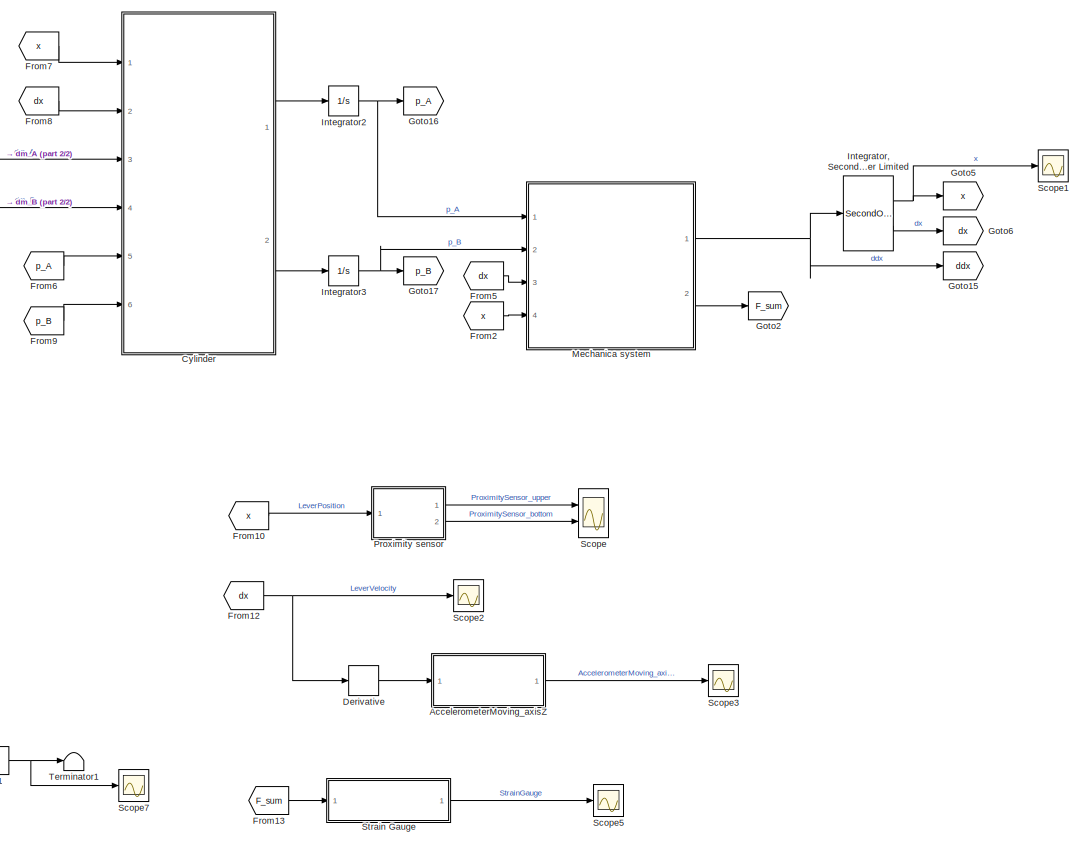
[diagram: root canvas - part 1/2, right side, full height]
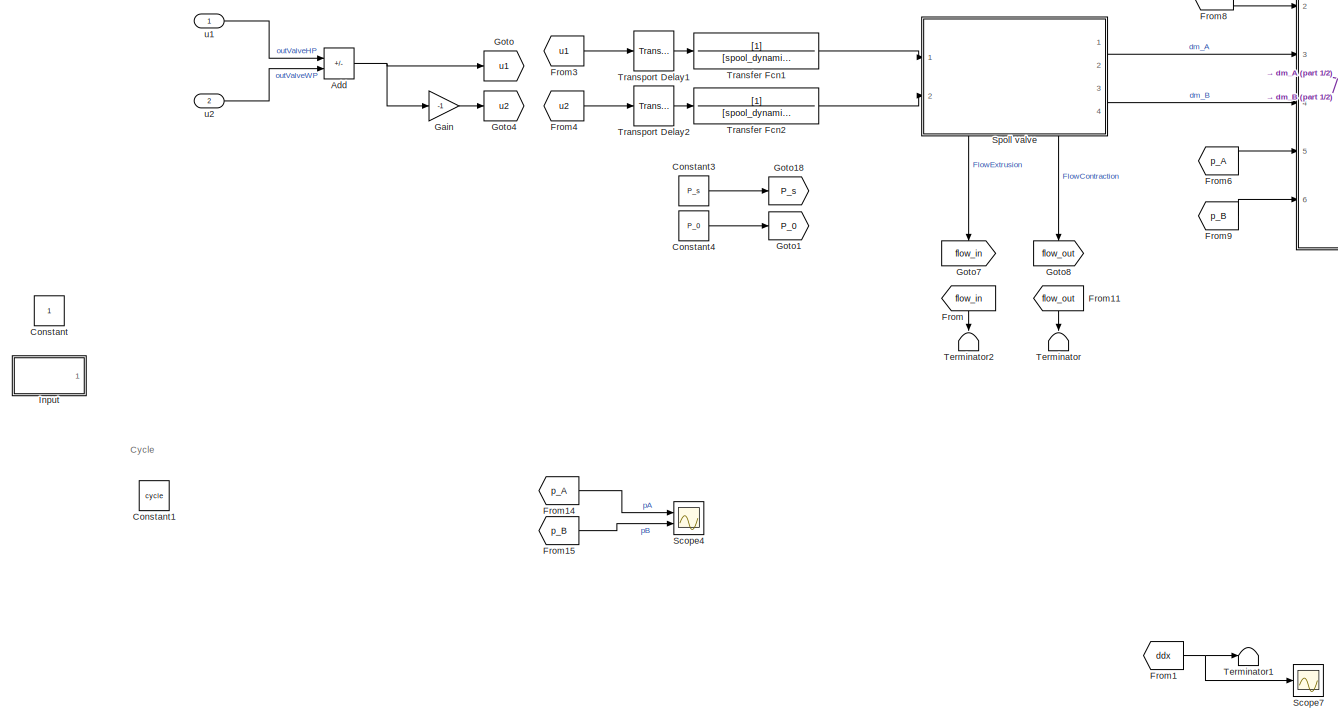
[diagram: root canvas - part 2/2, left side, full height]
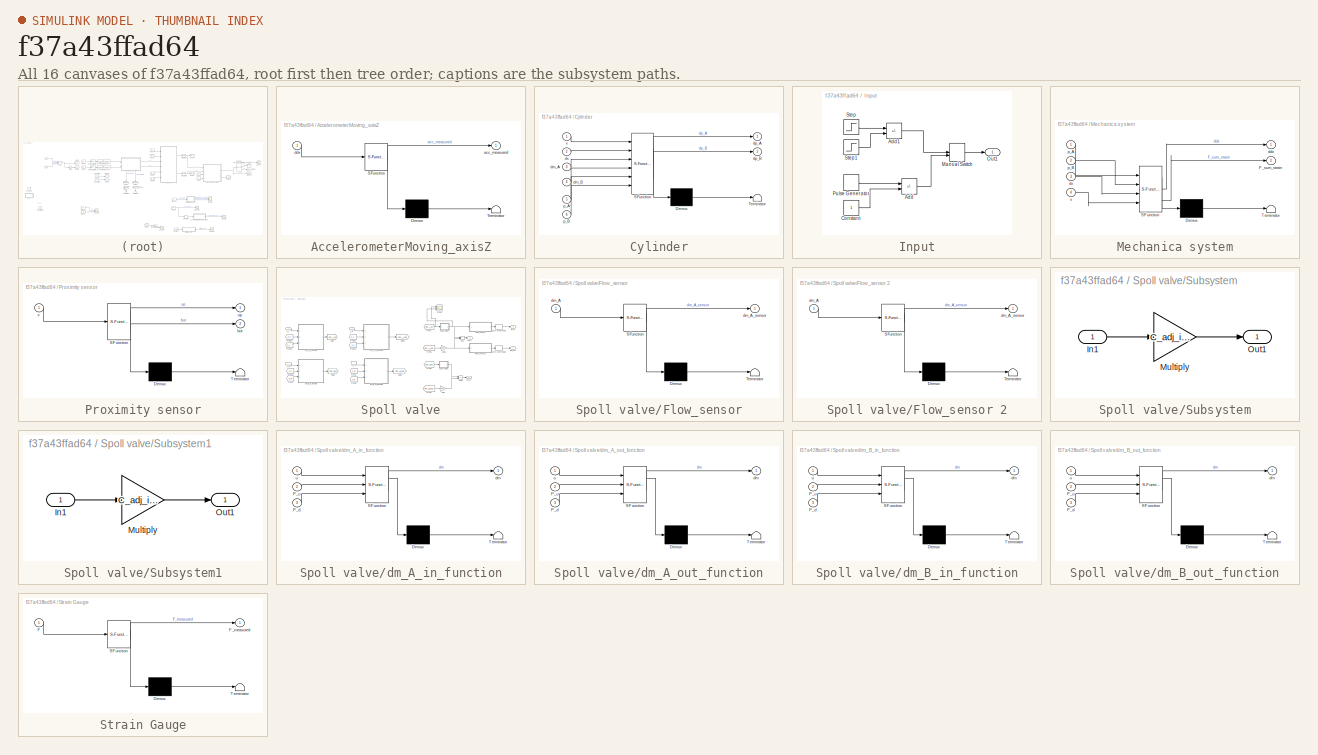
[diagram: thumbnail index - all 16 canvases of the model, root first then tree order]
MODEL slx_f37a43ffad64
KIND model
CONFIG AbsTol = auto
CONFIG EnableMultiTasking = off
CONFIG FixedStep = Ts
CONFIG MaxStep = auto
CONFIG MinStep = auto
CONFIG RelTol = 1e-3
CONFIG SampleTimeConstraint = Unconstrained
CONFIG SolverName = FixedStepAuto
CONFIG StartTime = 0.0
CONFIG StopTime = 10.0
BLOCK [SubSystem] AccelerometerMoving_axisZ
  ErrorFcn = Stateflow.Translate.translate
  PermitHierarchicalResolution = ExplicitOnly
  Ports = [1, 1]
  RequestExecContextInheritance = off
  SFBlockType = MATLAB Function
  TreatAsAtomicUnit = on
BLOCK [Demux] AccelerometerMoving_axisZ/ Demux 
  Outputs = 1
  Ports = [1, 1]
BLOCK [S-Function] AccelerometerMoving_axisZ/ SFunction 
  EnableBusSupport = on
  FunctionName = sf_sfun
  Parameters = acc_C,acc_enable,acc_noise_var
  PortCounts = [1 2]
  Ports = [1, 2]
  SFcnIsStateOwnerBlock = off
  SFunctionDeploymentMode = off
  Tag = Stateflow S-Function 1
BLOCK [Terminator] AccelerometerMoving_axisZ/ Terminator 
BLOCK [Outport] AccelerometerMoving_axisZ/acc_measured
BLOCK [Inport] AccelerometerMoving_axisZ/ddx
BLOCK [Sum] Add
  IconShape = rectangular
  Inputs = -+
  Ports = [2, 1]
BLOCK [Constant] Constant
  Commented = on
BLOCK [Constant] Constant1
  Commented = on
  OutDataTypeStr = double
  Value = cycle
  VectorParams1D = off
BLOCK [Constant] Constant3
  Value = P_s
BLOCK [Constant] Constant4
  Value = P_0
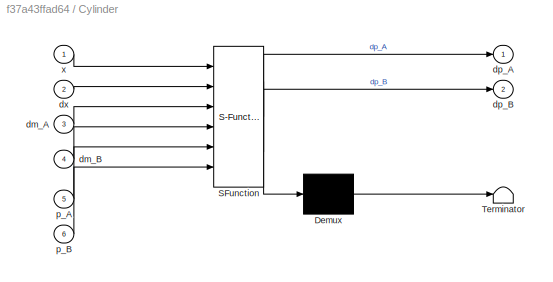
BLOCK [SubSystem] Cylinder
  ErrorFcn = Stateflow.Translate.translate
  PermitHierarchicalResolution = ExplicitOnly
  Ports = [6, 2]
  RequestExecContextInheritance = off
  SFBlockType = MATLAB Function
  TreatAsAtomicUnit = on
BLOCK [Demux] Cylinder/ Demux 
  Outputs = 1
  Ports = [1, 1]
BLOCK [S-Function] Cylinder/ SFunction 
  EnableBusSupport = on
  FunctionName = sf_sfun
  Parameters = L,R,S_A,S_B,T,V_0A,V_0B,gamma
  PortCounts = [6 3]
  Ports = [6, 3]
  SFcnIsStateOwnerBlock = off
  SFunctionDeploymentMode = off
  Tag = Stateflow S-Function 16
BLOCK [Terminator] Cylinder/ Terminator 
BLOCK [Inport] Cylinder/dm_A
  Port = 3
BLOCK [Inport] Cylinder/dm_B
  Port = 4
BLOCK [Outport] Cylinder/dp_A
BLOCK [Outport] Cylinder/dp_B
  Port = 2
BLOCK [Inport] Cylinder/dx
  Port = 2
BLOCK [Inport] Cylinder/p_A
  Port = 5
BLOCK [Inport] Cylinder/p_B
  Port = 6
BLOCK [Inport] Cylinder/x
BLOCK [Derivative] Derivative
BLOCK [From] From
  GotoTag = flow_in
  NameLocation = left
  TagVisibility = global
BLOCK [From] From1
  GotoTag = ddx
  TagVisibility = global
BLOCK [From] From10
  GotoTag = x
  TagVisibility = global
BLOCK [From] From11
  GotoTag = flow_out
  NameLocation = left
  TagVisibility = global
BLOCK [From] From12
  GotoTag = dx
  TagVisibility = global
BLOCK [From] From13
  GotoTag = F_sum
  TagVisibility = global
BLOCK [From] From14
  GotoTag = p_A
  TagVisibility = global
BLOCK [From] From15
  GotoTag = p_B
  TagVisibility = global
BLOCK [From] From2
  GotoTag = x
  TagVisibility = global
BLOCK [From] From3
  GotoTag = u1
BLOCK [From] From4
  GotoTag = u2
BLOCK [From] From5
  GotoTag = dx
  TagVisibility = global
BLOCK [From] From6
  GotoTag = p_A
  TagVisibility = global
BLOCK [From] From7
  GotoTag = x
  TagVisibility = global
BLOCK [From] From8
  GotoTag = dx
  TagVisibility = global
BLOCK [From] From9
  GotoTag = p_B
  TagVisibility = global
BLOCK [Gain] Gain
  Gain = -1
BLOCK [Goto] Goto
  GotoTag = u1
BLOCK [Goto] Goto1
  GotoTag = P_0
  TagVisibility = global
BLOCK [Goto] Goto15
  GotoTag = ddx
  TagVisibility = global
BLOCK [Goto] Goto16
  GotoTag = p_A
  TagVisibility = global
BLOCK [Goto] Goto17
  GotoTag = p_B
  TagVisibility = global
BLOCK [Goto] Goto18
  GotoTag = P_s
  TagVisibility = global
BLOCK [Goto] Goto2
  GotoTag = F_sum
  TagVisibility = global
BLOCK [Goto] Goto4
  GotoTag = u2
BLOCK [Goto] Goto5
  GotoTag = x
  TagVisibility = global
BLOCK [Goto] Goto6
  GotoTag = dx
  TagVisibility = global
BLOCK [Goto] Goto7
  GotoTag = flow_in
  NameLocation = left
  TagVisibility = global
BLOCK [Goto] Goto8
  GotoTag = flow_out
  NameLocation = left
  TagVisibility = global
BLOCK [SubSystem] Input
  Commented = on
  Ports = [0, 1]
  RequestExecContextInheritance = off
BLOCK [Sum] Input/Add
  IconShape = rectangular
  Inputs = +-
  Ports = [2, 1]
BLOCK [Sum] Input/Add1
  IconShape = rectangular
  Inputs = +-
  Ports = [2, 1]
BLOCK [Constant] Input/Constant
BLOCK [ManualSwitch] Input/Manual Switch
BLOCK [Outport] Input/Out1
BLOCK [DiscretePulseGenerator] Input/Pulse Generator
  Amplitude = 2
  Period = 10
  Ports = [0, 1]
  PulseType = Time based
  PulseWidth = 50
BLOCK [Step] Input/Step
  Before = -1
  SampleTime = 0
BLOCK [Step] Input/Step1
  After = 2
  SampleTime = 0
  Time = 6
BLOCK [SecondOrderIntegrator] Integrator, Second-Order Limited
  ICX = x0
  LowerLimitX = gn
  Ports = [1, 2]
  UpperLimitX = gp
BLOCK [Integrator] Integrator2
  InitialCondition = p_A0
  Ports = [1, 1]
BLOCK [Integrator] Integrator3
  InitialCondition = p_B0
  Ports = [1, 1]
BLOCK [SubSystem] Mechanica system
  ErrorFcn = Stateflow.Translate.translate
  PermitHierarchicalResolution = ExplicitOnly
  Ports = [4, 2]
  RequestExecContextInheritance = off
  SFBlockType = MATLAB Function
  TreatAsAtomicUnit = on
BLOCK [Demux] Mechanica system/ Demux 
  Outputs = 1
  Ports = [1, 1]
BLOCK [S-Function] Mechanica system/ SFunction 
  EnableBusSupport = on
  FunctionName = sf_sfun
  Parameters = B_hs,F_c,F_df,F_sf,K_hs,LargeDamper_bottom,LargeDamper_upper,M,M_L,P_0,S_0,S_A,S_B,SmallDamper_bottom,SmallDamper_upper,b_large_bot,b_large_up,b_small_bot,b_small_up,bot_damp_start,g,gn,gp,k_small_bot,k_small_up,up_damp_start
  PortCounts = [4 3]
  Ports = [4, 3]
  SFcnIsStateOwnerBlock = off
  SFunctionDeploymentMode = off
  Tag = Stateflow S-Function 15
BLOCK [Terminator] Mechanica system/ Terminator 
BLOCK [Outport] Mechanica system/F_sum_strain
  Port = 2
BLOCK [Outport] Mechanica system/ddx
BLOCK [Inport] Mechanica system/dx
  Port = 3
BLOCK [Inport] Mechanica system/p_A
BLOCK [Inport] Mechanica system/p_B
  Port = 2
BLOCK [Inport] Mechanica system/x
  Port = 4
BLOCK [SubSystem] Proximity sensor
  ErrorFcn = Stateflow.Translate.translate
  PermitHierarchicalResolution = ExplicitOnly
  Ports = [1, 2]
  RequestExecContextInheritance = off
  SFBlockType = MATLAB Function
  TreatAsAtomicUnit = on
BLOCK [Demux] Proximity sensor/ Demux 
  Outputs = 1
  Ports = [1, 1]
BLOCK [S-Function] Proximity sensor/ SFunction 
  EnableBusSupport = on
  FunctionName = sf_sfun
  Parameters = prox_bot_band,prox_up_band
  PortCounts = [1 3]
  Ports = [1, 3]
  SFcnIsStateOwnerBlock = off
  SFunctionDeploymentMode = off
  Tag = Stateflow S-Function 2
BLOCK [Terminator] Proximity sensor/ Terminator 
BLOCK [Outport] Proximity sensor/bot
  Port = 2
BLOCK [Outport] Proximity sensor/up
BLOCK [Inport] Proximity sensor/x
BLOCK [Scope] Scope
  Floating = off
  NumInputPorts = 2
  Ports = [2]
  ScopeSpecificationString = Simulink.scopes.TimeScopeBlockCfg('CurrentConfiguration', extmgr.ConfigurationSet(extmgr.Configuration('Core','General UI',true),extmgr.Configuration('Core','Source UI',true),extmgr.Configuration('Sources','WiredSimulink',true,'DataLoggingVariableName','ScopeData1'),extmgr.Configuration('Visuals','Time Domain',true,'SerializedDisplays',{struct('MinYLimReal','-0.125','MaxYLimReal','1.125','YLabelRe...<+2045ch>
BLOCK [Scope] Scope1
  Floating = off
  NumInputPorts = 1
  Ports = [1]
  ScopeSpecificationString = Simulink.scopes.TimeScopeBlockCfg('CurrentConfiguration', extmgr.ConfigurationSet(extmgr.Configuration('Core','General UI',true),extmgr.Configuration('Core','Source UI',true),extmgr.Configuration('Sources','WiredSimulink',true,'DataLoggingVariableName','ScopeData2'),extmgr.Configuration('Visuals','Time Domain',true,'SerializedDisplays',{struct('MinYLimReal','-0.02427','MaxYLimReal','0.21806','YLab...<+1434ch>
BLOCK [Scope] Scope2
  Floating = off
  NumInputPorts = 1
  Ports = [1]
  ScopeSpecificationString = Simulink.scopes.TimeScopeBlockCfg('CurrentConfiguration', extmgr.ConfigurationSet(extmgr.Configuration('Core','General UI',true),extmgr.Configuration('Core','Source UI',true),extmgr.Configuration('Sources','WiredSimulink',true,'DataLoggingVariableName','ScopeData3'),extmgr.Configuration('Visuals','Time Domain',true,'SerializedDisplays',{struct('MinYLimReal','-0.6813','MaxYLimReal','0.15824','YLabe...<+1442ch>
BLOCK [Scope] Scope3
  Floating = off
  NumInputPorts = 1
  Ports = [1]
  ScopeSpecificationString = Simulink.scopes.TimeScopeBlockCfg('CurrentConfiguration', extmgr.ConfigurationSet(extmgr.Configuration('Core','General UI',true),extmgr.Configuration('Core','Source UI',true),extmgr.Configuration('Sources','WiredSimulink',true,'DataLoggingVariableName','ScopeData4'),extmgr.Configuration('Visuals','Time Domain',true,'SerializedDisplays',{struct('MinYLimReal','-17.02237','MaxYLimReal','13.4128','YLa...<+1463ch>
BLOCK [Scope] Scope4
  Floating = off
  NumInputPorts = 2
  Ports = [2]
  ScopeSpecificationString = Simulink.scopes.TimeScopeBlockCfg('CurrentConfiguration', extmgr.ConfigurationSet(extmgr.Configuration('Core','General UI',true),extmgr.Configuration('Core','Source UI',true),extmgr.Configuration('Sources','WiredSimulink',true,'DataLoggingVariableName','ScopeData1'),extmgr.Configuration('Visuals','Time Domain',true,'SerializedDisplays',{struct('MinYLimReal','-13348.22995','MaxYLimReal','1131679.91...<+2043ch>
BLOCK [Scope] Scope5
  Floating = off
  NumInputPorts = 1
  Ports = [1]
  ScopeSpecificationString = Simulink.scopes.TimeScopeBlockCfg('CurrentConfiguration', extmgr.ConfigurationSet(extmgr.Configuration('Core','General UI',true),extmgr.Configuration('Core','Source UI',true),extmgr.Configuration('Sources','WiredSimulink',true,'DataLoggingVariableName','ScopeData5'),extmgr.Configuration('Visuals','Time Domain',true,'SerializedDisplays',{struct('MinYLimReal','-321.55849','MaxYLimReal','99.80258','Y...<+1456ch>
BLOCK [Scope] Scope7
  Floating = off
  NumInputPorts = 1
  Ports = [1]
  ScopeSpecificationString = Simulink.scopes.TimeScopeBlockCfg('CurrentConfiguration', extmgr.ConfigurationSet(extmgr.Configuration('Core','General UI',true),extmgr.Configuration('Core','Source UI',true),extmgr.Configuration('Sources','WiredSimulink',true,'DataLoggingVariableName','ScopeData6'),extmgr.Configuration('Visuals','Time Domain',true,'SerializedDisplays',{struct('MinYLimReal','-55.30608','MaxYLimReal','298.64024','Y...<+1448ch>
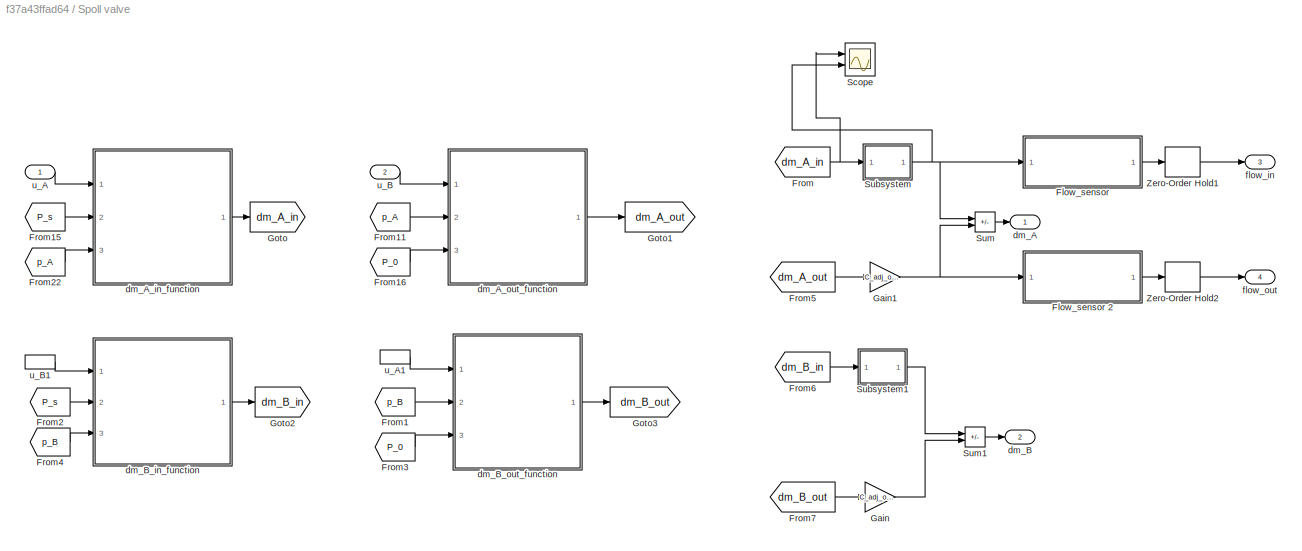
BLOCK [SubSystem] Spoll valve
  PortSchema = {"entries":[{"content":{"sides":[{"content":{"connectorIds":["In1","In2"]},"type":"ConnectorPlacement.EquallySpacedRectSide","uuid":"f49fadee-fa9e-4c00-be17-3013d1757a7f"},{"content":{"connectorIds":["Out1","Out2"],"side":"RIGHT"},"type":"ConnectorPlacement.EquallySpacedRectSide","uuid":"640b0073-0df7-45c7-9e72-cb244187d5a1"},{"content":{"connectorIds":[],"side":"TOP"},"type":"ConnectorPlacement.E...<+410ch>
  Ports = [2, 4]
  RequestExecContextInheritance = off
BLOCK [SubSystem] Spoll valve/Flow_sensor
  ErrorFcn = Stateflow.Translate.translate
  PermitHierarchicalResolution = ExplicitOnly
  Ports = [1, 1]
  RequestExecContextInheritance = off
  SFBlockType = MATLAB Function
  TreatAsAtomicUnit = on
BLOCK [SubSystem] Spoll valve/Flow_sensor 2
  ErrorFcn = Stateflow.Translate.translate
  PermitHierarchicalResolution = ExplicitOnly
  Ports = [1, 1]
  RequestExecContextInheritance = off
  SFBlockType = MATLAB Function
  TreatAsAtomicUnit = on
BLOCK [Demux] Spoll valve/Flow_sensor 2/ Demux 
  Outputs = 1
  Ports = [1, 1]
BLOCK [S-Function] Spoll valve/Flow_sensor 2/ SFunction 
  EnableBusSupport = on
  FunctionName = sf_sfun
  Parameters = flow_C,flow_C_ratio,flow_noise_var
  PortCounts = [1 2]
  Ports = [1, 2]
  SFcnIsStateOwnerBlock = off
  SFunctionDeploymentMode = off
  Tag = Stateflow S-Function 4
BLOCK [Terminator] Spoll valve/Flow_sensor 2/ Terminator 
BLOCK [Inport] Spoll valve/Flow_sensor 2/dm_A
BLOCK [Outport] Spoll valve/Flow_sensor 2/dm_A_sensor
BLOCK [Demux] Spoll valve/Flow_sensor/ Demux 
  Outputs = 1
  Ports = [1, 1]
BLOCK [S-Function] Spoll valve/Flow_sensor/ SFunction 
  EnableBusSupport = on
  FunctionName = sf_sfun
  Parameters = flow_C,flow_C_ratio,flow_noise_var
  PortCounts = [1 2]
  Ports = [1, 2]
  SFcnIsStateOwnerBlock = off
  SFunctionDeploymentMode = off
  Tag = Stateflow S-Function 3
BLOCK [Terminator] Spoll valve/Flow_sensor/ Terminator 
BLOCK [Inport] Spoll valve/Flow_sensor/dm_A
BLOCK [Outport] Spoll valve/Flow_sensor/dm_A_sensor
BLOCK [From] Spoll valve/From
  GotoTag = dm_A_in
BLOCK [From] Spoll valve/From1
  GotoTag = p_B
  TagVisibility = global
BLOCK [From] Spoll valve/From11
  GotoTag = p_A
  TagVisibility = global
BLOCK [From] Spoll valve/From15
  GotoTag = P_s
  TagVisibility = global
BLOCK [From] Spoll valve/From16
  GotoTag = P_0
  TagVisibility = global
BLOCK [From] Spoll valve/From2
  GotoTag = P_s
  TagVisibility = global
BLOCK [From] Spoll valve/From22
  GotoTag = p_A
  TagVisibility = global
BLOCK [From] Spoll valve/From3
  GotoTag = P_0
  TagVisibility = global
BLOCK [From] Spoll valve/From4
  GotoTag = p_B
  TagVisibility = global
BLOCK [From] Spoll valve/From5
  GotoTag = dm_A_out
BLOCK [From] Spoll valve/From6
  GotoTag = dm_B_in
BLOCK [From] Spoll valve/From7
  GotoTag = dm_B_out
BLOCK [Gain] Spoll valve/Gain
  Gain = C_adj_out
BLOCK [Gain] Spoll valve/Gain1
  Gain = C_adj_out
BLOCK [Goto] Spoll valve/Goto
  GotoTag = dm_A_in
BLOCK [Goto] Spoll valve/Goto1
  GotoTag = dm_A_out
BLOCK [Goto] Spoll valve/Goto2
  GotoTag = dm_B_in
BLOCK [Goto] Spoll valve/Goto3
  GotoTag = dm_B_out
BLOCK [Scope] Spoll valve/Scope
  Floating = off
  NumInputPorts = 2
  Ports = [2]
  ScopeSpecificationString = Simulink.scopes.TimeScopeBlockCfg('CurrentConfiguration', extmgr.ConfigurationSet(extmgr.Configuration('Core','General UI',true),extmgr.Configuration('Core','Source UI',true),extmgr.Configuration('Sources','WiredSimulink',true,'DataLoggingVariableName','ScopeData1'),extmgr.Configuration('Visuals','Time Domain',true,'SerializedDisplays',{struct('MinYLimReal','-0.00012','MaxYLimReal','0.0011','YLabe...<+1425ch>
BLOCK [SubSystem] Spoll valve/Subsystem
  Ports = [1, 1]
  RequestExecContextInheritance = off
BLOCK [Inport] Spoll valve/Subsystem/In1
BLOCK [Gain] Spoll valve/Subsystem/Multiply
  Gain = C_adj_in*(p4*valve1^4 + p3*valve1^3+p2*valve1^2 + p1*valve1 + p0)
BLOCK [Outport] Spoll valve/Subsystem/Out1
BLOCK [SubSystem] Spoll valve/Subsystem1
  Ports = [1, 1]
  RequestExecContextInheritance = off
BLOCK [Inport] Spoll valve/Subsystem1/In1
BLOCK [Gain] Spoll valve/Subsystem1/Multiply
  Gain = C_adj_in*(p4*valve2^4 + p3*valve2^3+p2*valve2^2 + p1*valve2 + p0)
BLOCK [Outport] Spoll valve/Subsystem1/Out1
BLOCK [Sum] Spoll valve/Sum
  IconShape = rectangular
  Inputs = +-
  Ports = [2, 1]
BLOCK [Sum] Spoll valve/Sum1
  IconShape = rectangular
  Inputs = +-
  Ports = [2, 1]
BLOCK [ZeroOrderHold] Spoll valve/Zero-Order Hold1
  SampleTime = Ts
BLOCK [ZeroOrderHold] Spoll valve/Zero-Order Hold2
  SampleTime = Ts
BLOCK [Outport] Spoll valve/dm_A
BLOCK [SubSystem] Spoll valve/dm_A_in_function
  ErrorFcn = Stateflow.Translate.translate
  PermitHierarchicalResolution = ExplicitOnly
  Ports = [3, 1]
  RequestExecContextInheritance = off
  SFBlockType = MATLAB Function
  TreatAsAtomicUnit = on
BLOCK [Demux] Spoll valve/dm_A_in_function/ Demux 
  Outputs = 1
  Ports = [1, 1]
BLOCK [S-Function] Spoll valve/dm_A_in_function/ SFunction 
  EnableBusSupport = on
  FunctionName = sf_sfun
  Parameters = C_1,C_2,C_A_in,P_cr,T,gamma
  PortCounts = [3 2]
  Ports = [3, 2]
  SFcnIsStateOwnerBlock = off
  SFunctionDeploymentMode = off
  Tag = Stateflow S-Function 17
BLOCK [Terminator] Spoll valve/dm_A_in_function/ Terminator 
BLOCK [Inport] Spoll valve/dm_A_in_function/P_d
  Port = 3
BLOCK [Inport] Spoll valve/dm_A_in_function/P_u
  Port = 2
BLOCK [Outport] Spoll valve/dm_A_in_function/dm
BLOCK [Inport] Spoll valve/dm_A_in_function/u
BLOCK [SubSystem] Spoll valve/dm_A_out_function
  ErrorFcn = Stateflow.Translate.translate
  PermitHierarchicalResolution = ExplicitOnly
  Ports = [3, 1]
  RequestExecContextInheritance = off
  SFBlockType = MATLAB Function
  TreatAsAtomicUnit = on
BLOCK [Demux] Spoll valve/dm_A_out_function/ Demux 
  Outputs = 1
  Ports = [1, 1]
BLOCK [S-Function] Spoll valve/dm_A_out_function/ SFunction 
  EnableBusSupport = on
  FunctionName = sf_sfun
  Parameters = C_1,C_2,C_A_out,P_cr,T,gamma
  PortCounts = [3 2]
  Ports = [3, 2]
  SFcnIsStateOwnerBlock = off
  SFunctionDeploymentMode = off
  Tag = Stateflow S-Function 18
BLOCK [Terminator] Spoll valve/dm_A_out_function/ Terminator 
BLOCK [Inport] Spoll valve/dm_A_out_function/P_d
  Port = 3
BLOCK [Inport] Spoll valve/dm_A_out_function/P_u
  Port = 2
BLOCK [Outport] Spoll valve/dm_A_out_function/dm
BLOCK [Inport] Spoll valve/dm_A_out_function/u
BLOCK [Outport] Spoll valve/dm_B
  Port = 2
BLOCK [SubSystem] Spoll valve/dm_B_in_function
  ErrorFcn = Stateflow.Translate.translate
  PermitHierarchicalResolution = ExplicitOnly
  Ports = [3, 1]
  RequestExecContextInheritance = off
  SFBlockType = MATLAB Function
  TreatAsAtomicUnit = on
BLOCK [Demux] Spoll valve/dm_B_in_function/ Demux 
  Outputs = 1
  Ports = [1, 1]
BLOCK [S-Function] Spoll valve/dm_B_in_function/ SFunction 
  EnableBusSupport = on
  FunctionName = sf_sfun
  Parameters = C_1,C_2,C_B_in,P_cr,T,gamma
  PortCounts = [3 2]
  Ports = [3, 2]
  SFcnIsStateOwnerBlock = off
  SFunctionDeploymentMode = off
  Tag = Stateflow S-Function 19
BLOCK [Terminator] Spoll valve/dm_B_in_function/ Terminator 
BLOCK [Inport] Spoll valve/dm_B_in_function/P_d
  Port = 3
BLOCK [Inport] Spoll valve/dm_B_in_function/P_u
  Port = 2
BLOCK [Outport] Spoll valve/dm_B_in_function/dm
BLOCK [Inport] Spoll valve/dm_B_in_function/u
BLOCK [SubSystem] Spoll valve/dm_B_out_function
  ErrorFcn = Stateflow.Translate.translate
  PermitHierarchicalResolution = ExplicitOnly
  Ports = [3, 1]
  RequestExecContextInheritance = off
  SFBlockType = MATLAB Function
  TreatAsAtomicUnit = on
BLOCK [Demux] Spoll valve/dm_B_out_function/ Demux 
  Outputs = 1
  Ports = [1, 1]
BLOCK [S-Function] Spoll valve/dm_B_out_function/ SFunction 
  EnableBusSupport = on
  FunctionName = sf_sfun
  Parameters = C_1,C_2,C_B_out,P_cr,T,gamma
  PortCounts = [3 2]
  Ports = [3, 2]
  SFcnIsStateOwnerBlock = off
  SFunctionDeploymentMode = off
  Tag = Stateflow S-Function 20
BLOCK [Terminator] Spoll valve/dm_B_out_function/ Terminator 
BLOCK [Inport] Spoll valve/dm_B_out_function/P_d
  Port = 3
BLOCK [Inport] Spoll valve/dm_B_out_function/P_u
  Port = 2
BLOCK [Outport] Spoll valve/dm_B_out_function/dm
BLOCK [Inport] Spoll valve/dm_B_out_function/u
BLOCK [Outport] Spoll valve/flow_in
  Port = 3
BLOCK [Outport] Spoll valve/flow_out
  Port = 4
BLOCK [Inport] Spoll valve/u_A
BLOCK [InportShadow] Spoll valve/u_A1
BLOCK [Inport] Spoll valve/u_B
  Port = 2
BLOCK [InportShadow] Spoll valve/u_B1
  Port = 2
BLOCK [SubSystem] Strain Gauge
  ErrorFcn = Stateflow.Translate.translate
  PermitHierarchicalResolution = ExplicitOnly
  Ports = [1, 1]
  RequestExecContextInheritance = off
  SFBlockType = MATLAB Function
  TreatAsAtomicUnit = on
BLOCK [Demux] Strain Gauge/ Demux 
  Outputs = 1
  Ports = [1, 1]
BLOCK [S-Function] Strain Gauge/ SFunction 
  EnableBusSupport = on
  FunctionName = sf_sfun
  Parameters = sg_C,sg_enable,sg_noise_var
  PortCounts = [1 2]
  Ports = [1, 2]
  SFcnIsStateOwnerBlock = off
  SFunctionDeploymentMode = off
  Tag = Stateflow S-Function 5
BLOCK [Terminator] Strain Gauge/ Terminator 
BLOCK [Inport] Strain Gauge/F
BLOCK [Outport] Strain Gauge/F_measured
BLOCK [Terminator] Terminator
  NameLocation = left
BLOCK [Terminator] Terminator1
BLOCK [Terminator] Terminator2
  NameLocation = left
BLOCK [TransferFcn] Transfer Fcn1
  Denominator = [spool_dynamic 1]
BLOCK [TransferFcn] Transfer Fcn2
  Denominator = [spool_dynamic 1]
BLOCK [TransportDelay] Transport Delay1
  DelayTime = spool_valve_time_delay
  Ports = [1, 1]
BLOCK [TransportDelay] Transport Delay2
  DelayTime = spool_valve_time_delay
  Ports = [1, 1]
BLOCK [Inport] u1
BLOCK [Inport] u2
  Port = 2
ANNOTATION (root): Cycle
LINE AccelerometerMoving_axisZ:1 -> Scope3:1
NET Add:1 -> Gain:1, Goto:1
LINE Constant3:1 -> Goto18:1
LINE Constant4:1 -> Goto1:1
LINE Cylinder:1 -> Integrator2:1
LINE Cylinder:2 -> Integrator3:1
LINE Derivative:1 -> AccelerometerMoving_axisZ:1
LINE From10:1 -> Proximity sensor:1
LINE From11:1 -> Terminator:1
NET From12:1 -> Derivative:1, Scope2:1
LINE From13:1 -> Strain Gauge:1
LINE From14:1 -> Scope4:1
LINE From15:1 -> Scope4:2
NET From1:1 -> Scope7:1, Terminator1:1
LINE From2:1 -> Mechanica system:4
LINE From3:1 -> Transport Delay1:1
LINE From4:1 -> Transport Delay2:1
LINE From5:1 -> Mechanica system:3
LINE From6:1 -> Cylinder:5
LINE From7:1 -> Cylinder:1
LINE From8:1 -> Cylinder:2
LINE From9:1 -> Cylinder:6
LINE From:1 -> Terminator2:1
LINE Gain:1 -> Goto4:1
LINE Input/Add1:1 -> Input/Manual Switch:1
LINE Input/Add:1 -> Input/Manual Switch:2
LINE Input/Constant:1 -> Input/Add:2
LINE Input/Manual Switch:1 -> Input/Out1:1
LINE Input/Pulse Generator:1 -> Input/Add:1
LINE Input/Step1:1 -> Input/Add1:2
LINE Input/Step:1 -> Input/Add1:1
NET Integrator, Second-Order Limited:1 -> Goto5:1, Scope1:1
LINE Integrator, Second-Order Limited:2 -> Goto6:1
NET Integrator2:1 -> Goto16:1, Mechanica system:1
NET Integrator3:1 -> Goto17:1, Mechanica system:2
NET Mechanica system:1 -> Goto15:1, Integrator, Second-Order Limited:1
LINE Mechanica system:2 -> Goto2:1
LINE Proximity sensor:1 -> Scope:1
LINE Proximity sensor:2 -> Scope:2
LINE Spoll valve/Flow_sensor 2:1 -> Spoll valve/Zero-Order Hold2:1
LINE Spoll valve/Flow_sensor:1 -> Spoll valve/Zero-Order Hold1:1
LINE Spoll valve/From11:1 -> Spoll valve/dm_A_out_function:2
LINE Spoll valve/From15:1 -> Spoll valve/dm_A_in_function:2
LINE Spoll valve/From16:1 -> Spoll valve/dm_A_out_function:3
LINE Spoll valve/From1:1 -> Spoll valve/dm_B_out_function:2
LINE Spoll valve/From22:1 -> Spoll valve/dm_A_in_function:3
LINE Spoll valve/From2:1 -> Spoll valve/dm_B_in_function:2
LINE Spoll valve/From3:1 -> Spoll valve/dm_B_out_function:3
LINE Spoll valve/From4:1 -> Spoll valve/dm_B_in_function:3
LINE Spoll valve/From5:1 -> Spoll valve/Gain1:1
LINE Spoll valve/From6:1 -> Spoll valve/Subsystem1:1
LINE Spoll valve/From7:1 -> Spoll valve/Gain:1
NET Spoll valve/From:1 -> Spoll valve/Scope:1, Spoll valve/Subsystem:1
NET Spoll valve/Gain1:1 -> Spoll valve/Flow_sensor 2:1, Spoll valve/Sum:2
LINE Spoll valve/Gain:1 -> Spoll valve/Sum1:2
LINE Spoll valve/Subsystem/In1:1 -> Spoll valve/Subsystem/Multiply:1
LINE Spoll valve/Subsystem/Multiply:1 -> Spoll valve/Subsystem/Out1:1
LINE Spoll valve/Subsystem1/In1:1 -> Spoll valve/Subsystem1/Multiply:1
LINE Spoll valve/Subsystem1/Multiply:1 -> Spoll valve/Subsystem1/Out1:1
LINE Spoll valve/Subsystem1:1 -> Spoll valve/Sum1:1
NET Spoll valve/Subsystem:1 -> Spoll valve/Flow_sensor:1, Spoll valve/Scope:2, Spoll valve/Sum:1
LINE Spoll valve/Sum1:1 -> Spoll valve/dm_B:1
LINE Spoll valve/Sum:1 -> Spoll valve/dm_A:1
LINE Spoll valve/Zero-Order Hold1:1 -> Spoll valve/flow_in:1
LINE Spoll valve/Zero-Order Hold2:1 -> Spoll valve/flow_out:1
LINE Spoll valve/dm_A_in_function:1 -> Spoll valve/Goto:1
LINE Spoll valve/dm_A_out_function:1 -> Spoll valve/Goto1:1
LINE Spoll valve/dm_B_in_function:1 -> Spoll valve/Goto2:1
LINE Spoll valve/dm_B_out_function:1 -> Spoll valve/Goto3:1
LINE Spoll valve/u_A1:1 -> Spoll valve/dm_B_out_function:1
LINE Spoll valve/u_A:1 -> Spoll valve/dm_A_in_function:1
LINE Spoll valve/u_B1:1 -> Spoll valve/dm_B_in_function:1
LINE Spoll valve/u_B:1 -> Spoll valve/dm_A_out_function:1
LINE Spoll valve:1 -> Cylinder:3
LINE Spoll valve:2 -> Cylinder:4
LINE Spoll valve:3 -> Goto7:1
LINE Spoll valve:4 -> Goto8:1
LINE Strain Gauge:1 -> Scope5:1
LINE Transfer Fcn1:1 -> Spoll valve:1
LINE Transfer Fcn2:1 -> Spoll valve:2
LINE Transport Delay1:1 -> Transfer Fcn1:1
LINE Transport Delay2:1 -> Transfer Fcn2:1
LINE u1:1 -> Add:1
LINE u2:1 -> Add:2
note: NET lines group one-source signal fan-out (src -> all destinations, sorted); 1:1 wires keep LINE
CHART Cylinder states=1 transitions=1
  STATE_LABEL 'eML_blk_kernel()'
  STATE_LABEL 'SCRIPT:\nfunction [dp_A,dp_B]= fcn(x,dx,dm_A,dm_B,p_A,p_B,gamma,V_0A,V_0B,S_A,S_B,R,T,L)\nV_A = V_0A + S_A*x;\ndV_A = dx * S_A;\n\nV_B = V_0B + S_B*(L-x);\ndV_B = - dx * S_B;\n\ndp_A = dm_A*gamma*R*T/V_A - p_A*gamma*dV_A/V_A;\ndp_B = dm_B*gamma*R*T/V_B - p_B*gamma*dV_B/V_B;\nend'
CHART Spoll valve/dm_A_in_function states=1 transitions=1
  STATE_LABEL 'eML_blk_kernel()'
  STATE_LABEL 'SCRIPT:\nfunction dm = fcn(u, P_u, P_d, C_A_in, C_1, C_2, P_cr, T, gamma)\nif u > 0    \n    P_ratio = P_d/P_u;\n    if P_ratio <= P_cr && P_ratio >= 0\n        dm = u*C_A_in*C_1*P_u/sqrt(T);\n    elseif P_ratio > P_cr && P_ratio <= 1\n        dm = u*C_A_in*C_2*P_u/sqrt(T)*P_ratio^(1/gamma)*sqrt(1-P_ratio^((gamma-1)/gamma));\n    else\n        %dm = -u*C_A_in*C_2*P_d/sqrt(T)*(1/P_ratio)^(1/gamma)*sqrt(1-(1...<+74ch>'
CHART Spoll valve/dm_A_out_function states=1 transitions=1
  STATE_LABEL 'eML_blk_kernel()'
  STATE_LABEL 'SCRIPT:\nfunction dm = fcn(u, P_u, P_d, C_A_out, C_1, P_cr, C_2, T, gamma)\nif u > 0    \n    P_ratio = P_d/P_u;\n    if P_ratio <= P_cr && P_ratio >= 0\n        dm = u*C_A_out*C_1*P_u/sqrt(T);\n    elseif P_ratio > P_cr && P_ratio <= 1\n        dm = u*C_A_out*C_2*P_u/sqrt(T)*P_ratio^(1/gamma)*sqrt(1-P_ratio^((gamma-1)/gamma));\n    else\n        %dm = -u*C_A_out*C_2*P_d/sqrt(T)*(1/P_ratio)^(1/gamma)*sqrt(...<+78ch>'
CHART Spoll valve/dm_B_in_function states=1 transitions=1
  STATE_LABEL 'eML_blk_kernel()'
  STATE_LABEL 'SCRIPT:\nfunction dm = fcn(u, P_u, P_d, P_cr, C_B_in, C_1, C_2, T, gamma)\nif u > 0    \n    P_ratio = P_d/P_u;\n    if P_ratio <= P_cr && P_ratio >= 0\n        dm = u*C_B_in*C_1*P_u/sqrt(T);\n    elseif P_ratio > P_cr && P_ratio <= 1\n        dm = u*C_B_in*C_2*P_u/sqrt(T)*P_ratio^(1/gamma)*sqrt(1-P_ratio^((gamma-1)/gamma));\n    else\n        %dm = -u*C_B_in*C_2*P_d/sqrt(T)*(1/P_ratio)^(1/gamma)*sqrt(1-(1...<+74ch>'
CHART Spoll valve/dm_B_out_function states=1 transitions=1
  STATE_LABEL 'eML_blk_kernel()'
  STATE_LABEL 'SCRIPT:\nfunction dm = fcn(u, P_u, P_d, P_cr, C_B_out, C_1, C_2, T, gamma)\nif u > 0    \n    P_ratio = P_d/P_u;\n    if P_ratio <= P_cr && P_ratio >= 0\n        dm = u*C_B_out*C_1*P_u/sqrt(T);\n    elseif P_ratio > P_cr && P_ratio <= 1\n        dm = u*C_B_out*C_2*P_u/sqrt(T)*P_ratio^(1/gamma)*sqrt(1-P_ratio^((gamma-1)/gamma));\n    else\n        %dm = -u*C_B_out*C_2*P_d/sqrt(T)*(1/P_ratio)^(1/gamma)*sqrt(...<+78ch>'
CHART AccelerometerMoving_axisZ states=1 transitions=1
  STATE_LABEL 'eML_blk_kernel()'
  STATE_LABEL 'SCRIPT:\nfunction acc_measured = fcn(ddx, acc_noise_var, acc_enable, acc_C)\n\nZeroOffset = 2.5; % V\nSensetivity = 333; %mv/g\n\nacc = acc_enable * acc_C * ddx + 1;\n\nU_raw = acc*Sensetivity/1000 + ZeroOffset;\nU_raw = U_raw + acc_noise_var*(2*rand()-1);\n\nacc_measured =  acc_enable*((U_raw - ZeroOffset)*1000/Sensetivity);\nend'
CHART Proximity sensor states=1 transitions=1
  STATE_LABEL 'eML_blk_kernel()'
  STATE_LABEL 'SCRIPT:\nfunction [up,bot]= fcn(x, prox_up_band, prox_bot_band)\nif x >= prox_up_band\n    up = 1; bot = 0;\nelseif x <= prox_bot_band\n    bot = 1; up = 0;\nelse\n    bot = 0;\n    up = 0;\nend\n'
CHART Spoll valve/Flow_sensor states=1 transitions=1
  STATE_LABEL 'eML_blk_kernel()'
  STATE_LABEL 'SCRIPT:\nfunction dm_A_sensor = fcn(dm_A, flow_C, flow_C_ratio, flow_noise_var)\ndm_A_sensor = flow_C*(flow_C_ratio*dm_A + flow_noise_var*(2*rand()-1));\nend'
CHART Spoll valve/Flow_sensor 2 states=1 transitions=1
  STATE_LABEL 'eML_blk_kernel()'
  STATE_LABEL 'SCRIPT:\nfunction dm_A_sensor = fcn(dm_A, flow_C, flow_C_ratio, flow_noise_var)\ndm_A_sensor = flow_C*(flow_C_ratio*dm_A + flow_noise_var*(2*rand()-1));'
CHART Strain Gauge states=1 transitions=1
  STATE_LABEL 'eML_blk_kernel()'
  STATE_LABEL 'SCRIPT:\nfunction F_measured = fcn(F,sg_enable, sg_noise_var, sg_C)\nU = sg_enable*(sg_C*F + sg_noise_var*(2*rand()-1));\nF_measured = U*1/sg_C;\nend\n'
CHART Mechanica system states=1 transitions=1
  STATE_LABEL 'eML_blk_kernel()'
  STATE_LABEL 'SCRIPT:\nfunction [ddx, F_sum_strain] = fcn(p_A,p_B,dx,x,S_A,S_B,M,M_L,P_0,S_0,g, ...\n    up_damp_start,bot_damp_start,b_small_up,k_small_up,b_small_bot,k_small_bot,SmallDamper_bottom,SmallDamper_upper, ...\n    K_hs,B_hs,gp,gn,b_large_bot, b_large_up, LargeDamper_bottom, LargeDamper_upper, F_sf, F_df, F_c)\n\n\n\n% % Hard Stop\nif 1\nup_force = K_hs*(x-gp) + B_hs*dx*ge(dx,0);\nbot_force = K_hs*(x-gn) + B_...<+1343ch>'
CHART  states=0 transitions=0
CHART  states=0 transitions=0
CHART  states=0 transitions=0
CHART  states=0 transitions=0
CHART  states=0 transitions=0
CHART  states=0 transitions=0
CHART  states=0 transitions=0
CHART  states=0 transitions=0
CHART  states=0 transitions=0
CHART  states=0 transitions=0
CHART  states=0 transitions=0
